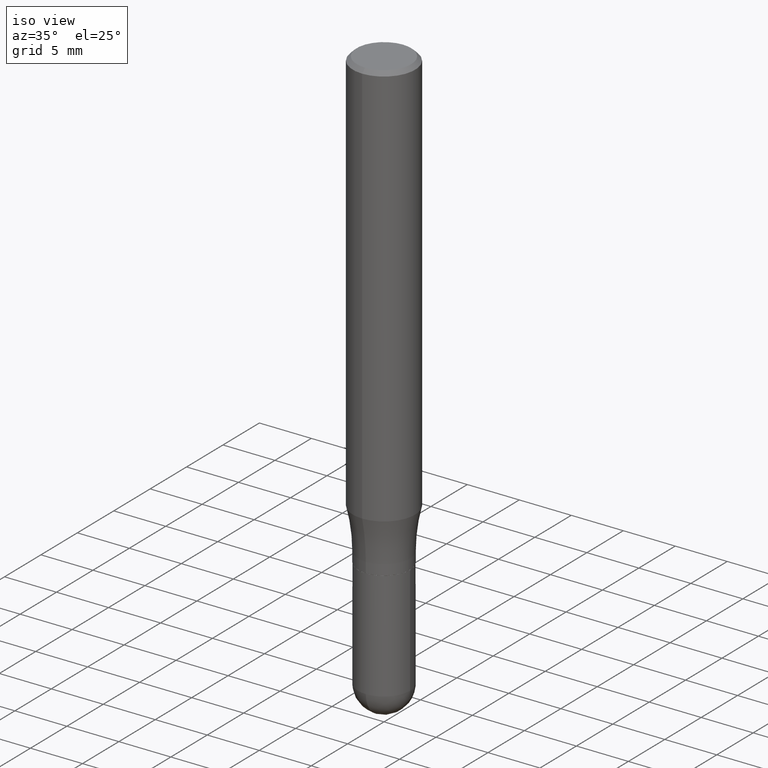
[diagram: clean part render]
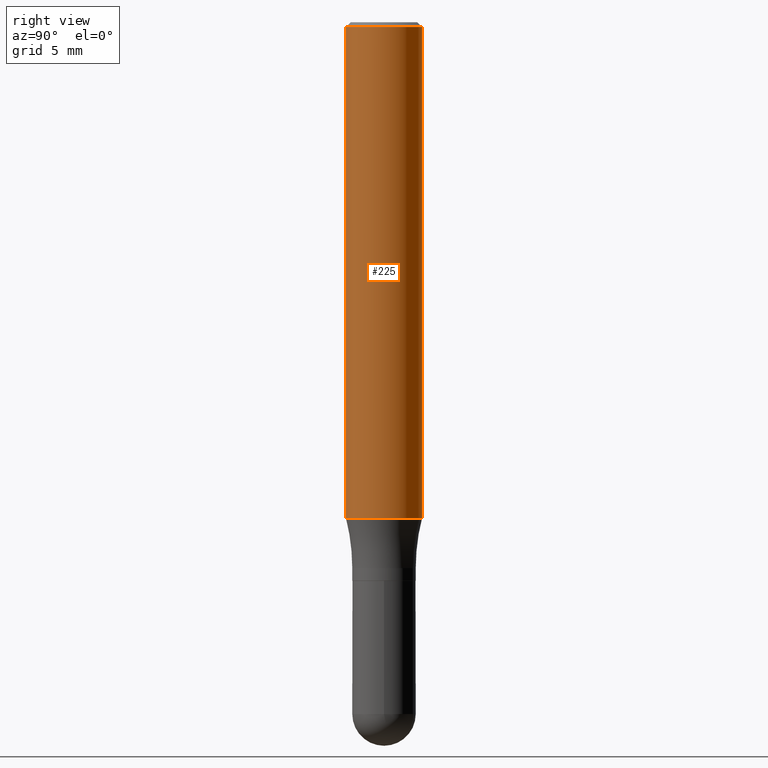
[diagram: tour spotlight — one face highlighted and labeled with its STEP entity id]
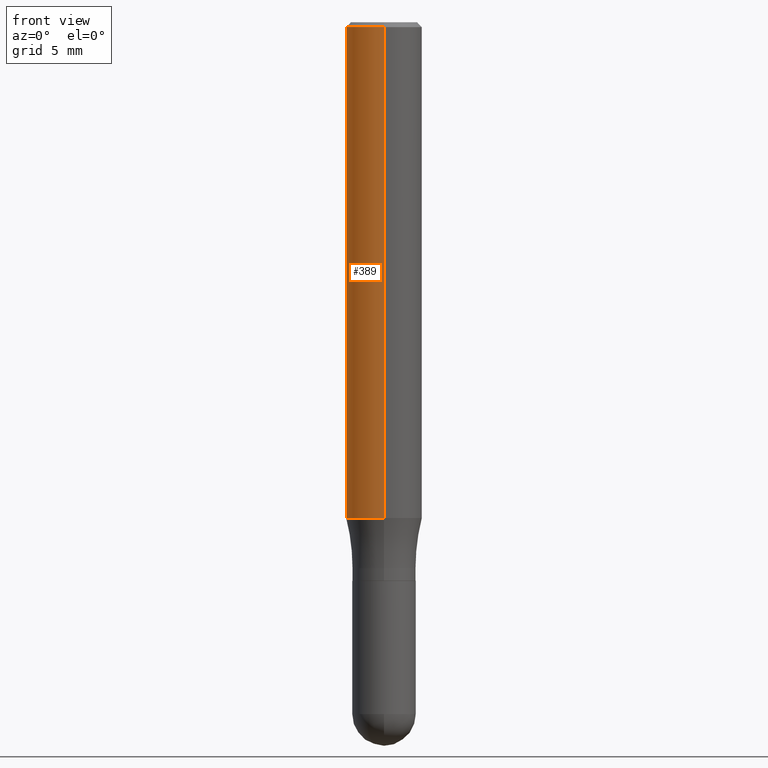
[diagram: tour spotlight — one face highlighted and labeled with its STEP entity id]
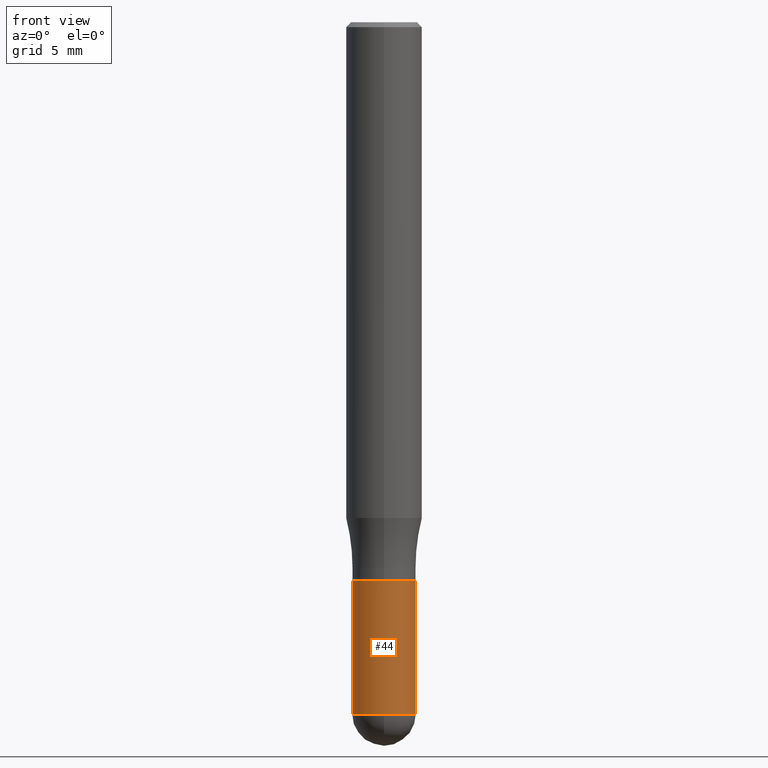
[diagram: tour spotlight — one face highlighted and labeled with its STEP entity id]
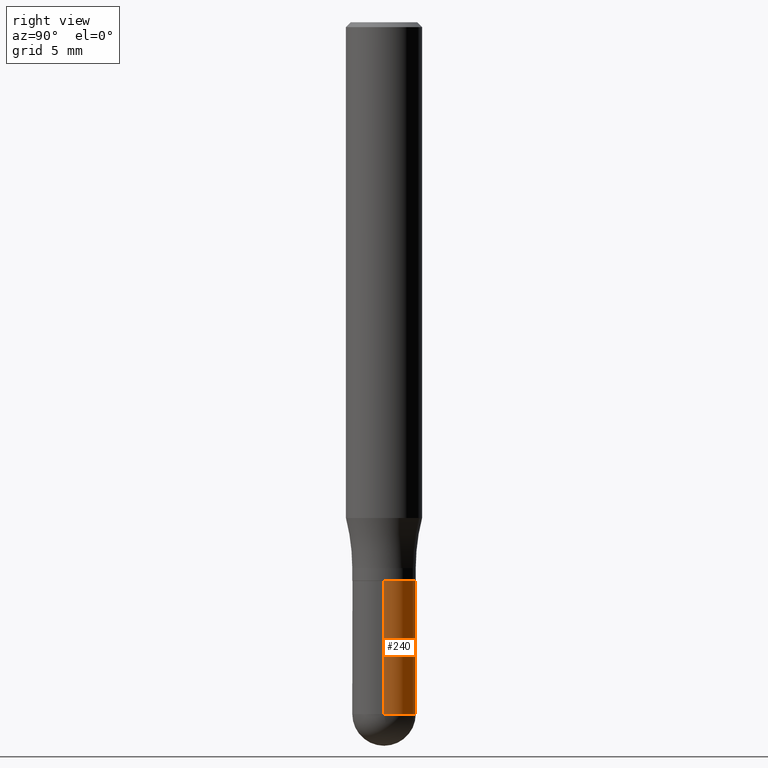
[diagram: tour spotlight — one face highlighted and labeled with its STEP entity id]
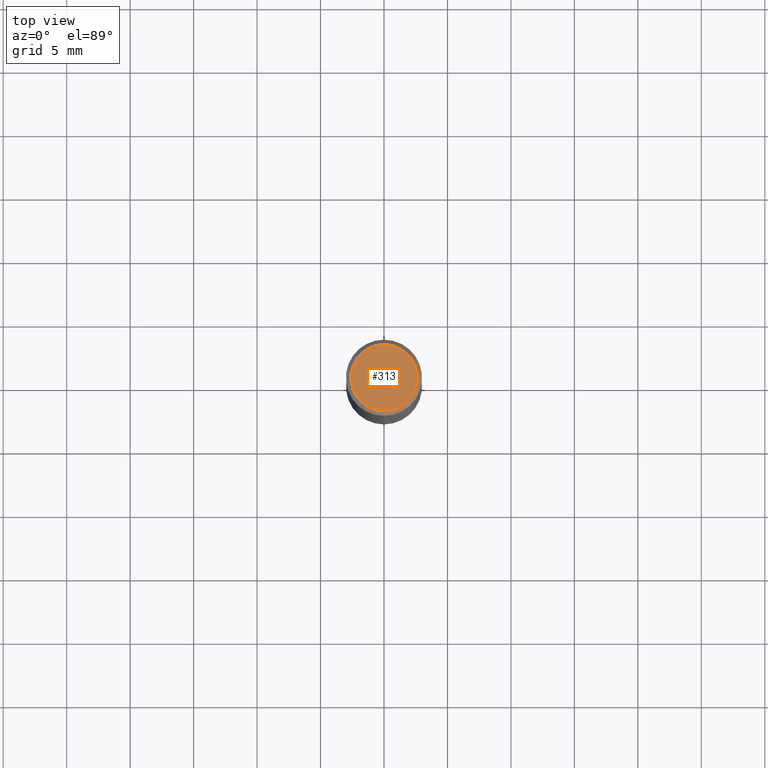
[diagram: tour spotlight — one face highlighted and labeled with its STEP entity id]
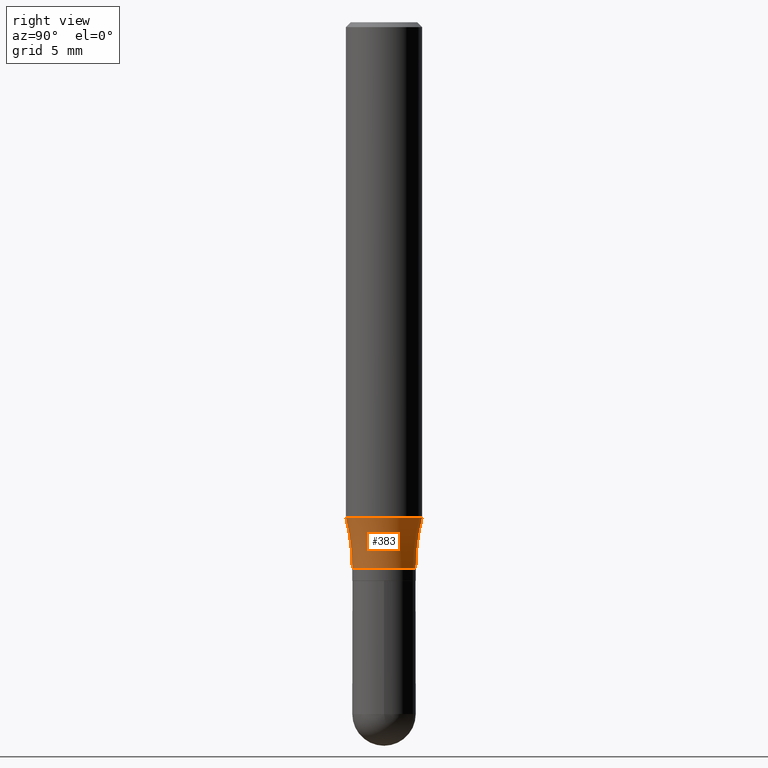
[diagram: tour spotlight — one face highlighted and labeled with its STEP entity id]
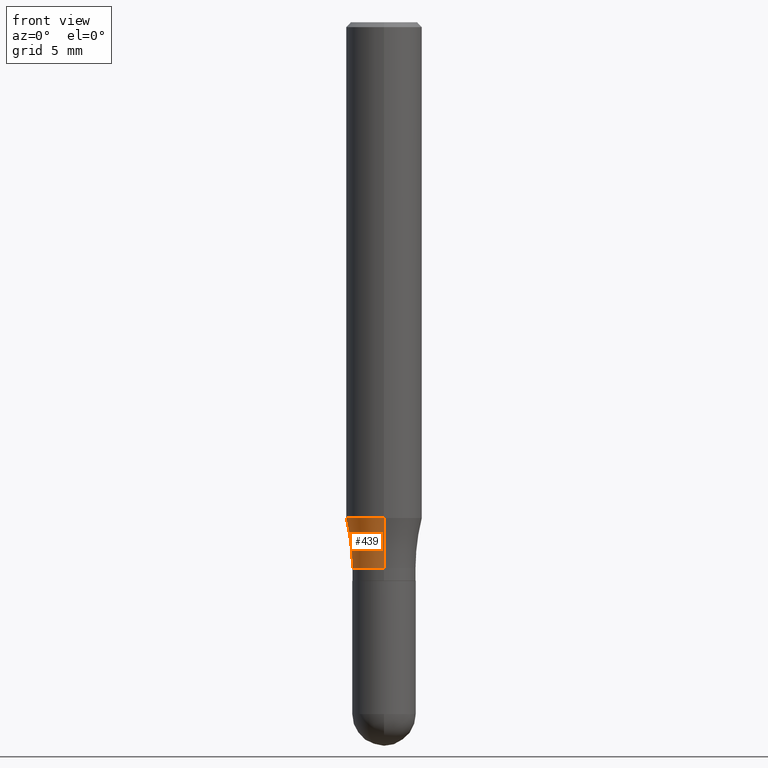
[diagram: tour spotlight — one face highlighted and labeled with its STEP entity id]
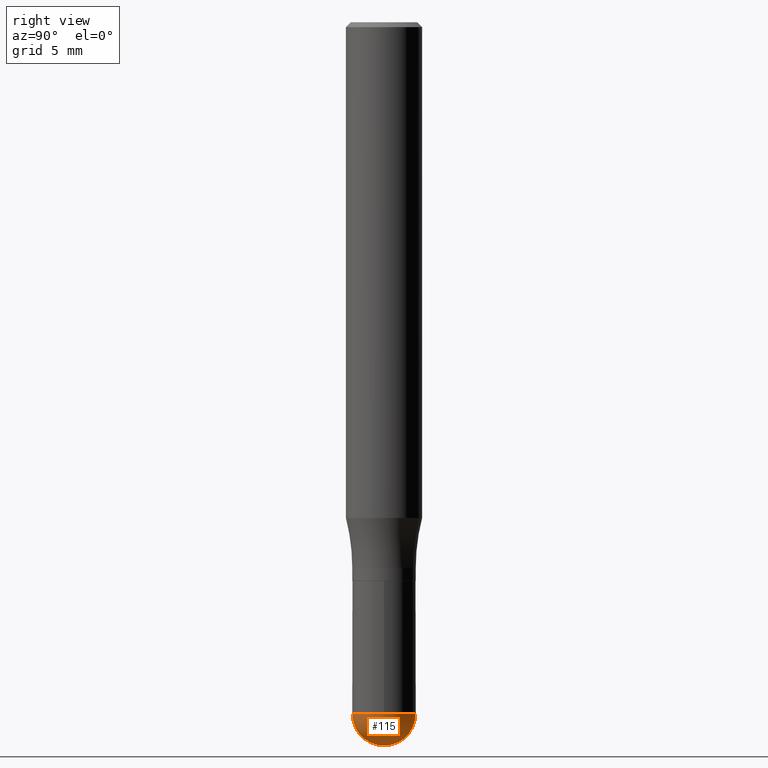
[diagram: tour spotlight — one face highlighted and labeled with its STEP entity id]
A machine part: a face-by-face anatomy tour. The part has 17 B-rep faces; the first image is the clean iso view, then the 8 largest visible faces are spotlighted one at a time (largest first), each with its STEP entity span.

Face 1 — right view, entity #225. In plain terms, the highlighted cylindrical surface (partial cylindrical patch) has radius 2.9997 mm, axis along (-0, 0, 1).
Definition (entity closure, byte-faithful):
#1 = DIRECTION ( 'NONE',  ( -2.443807302118375461E-29, 3.493860707233685893E-15, 1.000000000000000000 ) ) ;
#24 = VERTEX_POINT ( 'NONE', #470 ) ;
#25 = EDGE_LOOP ( 'NONE', ( #491, #377, #308, #436 ) ) ;
#30 = VERTEX_POINT ( 'NONE', #501 ) ;
#45 = CYLINDRICAL_SURFACE ( 'NONE', #103, 0.1181000000000000383 ) ;
#58 = EDGE_CURVE ( 'NONE', #24, #30, #259, .T. ) ;
#73 = DIRECTION ( 'NONE',  ( -2.443807302118375461E-29, 3.493860707233685893E-15, 1.000000000000000000 ) ) ;
#82 = CARTESIAN_POINT ( 'NONE',  ( 8.391509709327163582E-16, 0.1180999999999946815, -1.537612452267070218 ) ) ;
#103 = AXIS2_PLACEMENT_3D ( 'NONE', #434, #1, #236 ) ;
#116 = CARTESIAN_POINT ( 'NONE',  ( 8.391509709326783943E-16, 0.1181000000000000383, -4.126249495242984185E-16 ) ) ;
#118 = CARTESIAN_POINT ( 'NONE',  ( -8.246878922347482626E-16, -0.1181000000000000383, 4.126249495242984185E-16 ) ) ;
#119 = EDGE_CURVE ( 'NONE', #149, #24, #230, .T. ) ;
#122 = CARTESIAN_POINT ( 'NONE',  ( -8.246878922347102001E-16, -0.1181000000000054229, -1.537612452267069552 ) ) ;
#149 = VERTEX_POINT ( 'NONE', #122 ) ;
#161 = EDGE_CURVE ( 'NONE', #508, #30, #199, .T. ) ;
#181 = CIRCLE ( 'NONE', #319, 0.1181000000000000522 ) ;
#199 = LINE ( 'NONE', #116, #244 ) ;
#217 = EDGE_CURVE ( 'NONE', #149, #508, #181, .T. ) ;
#225 = ADVANCED_FACE ( 'NONE', ( #280 ), #45, .T. ) ;
#230 = LINE ( 'NONE', #118, #233 ) ;
#232 = DIRECTION ( 'NONE',  ( -6.982962677686265922E-15, -1.000000000000000000, 4.626330217890367758E-15 ) ) ;
#233 = VECTOR ( 'NONE', #322, 39.37007874015748143 ) ;
#236 = DIRECTION ( 'NONE',  ( -6.982962677686265922E-15, -1.000000000000000000, 3.493860707233685893E-15 ) ) ;
#242 = DIRECTION ( 'NONE',  ( -2.443807302118375461E-29, 3.493860707233685893E-15, 1.000000000000000000 ) ) ;
#244 = VECTOR ( 'NONE', #242, 39.37007874015748143 ) ;
#259 = CIRCLE ( 'NONE', #277, 0.1180999999999999966 ) ;
#277 = AXIS2_PLACEMENT_3D ( 'NONE', #304, #497, #335 ) ;
#280 = FACE_OUTER_BOUND ( 'NONE', #25, .T. ) ;
#304 = CARTESIAN_POINT ( 'NONE',  ( 3.665710953177518438E-31, -5.240791060850465138E-17, -0.01499999999999981730 ) ) ;
#308 = ORIENTED_EDGE ( 'NONE', *, *, #58, .F. ) ;
#319 = AXIS2_PLACEMENT_3D ( 'NONE', #479, #73, #232 ) ;
#322 = DIRECTION ( 'NONE',  ( -2.443807302118375461E-29, 3.493860707233685893E-15, 1.000000000000000000 ) ) ;
#335 = DIRECTION ( 'NONE',  ( -6.982962677686265922E-15, -1.000000000000000000, 3.487819265831411744E-15 ) ) ;
#377 = ORIENTED_EDGE ( 'NONE', *, *, #161, .T. ) ;
#434 = CARTESIAN_POINT ( 'NONE',  ( 0.000000000000000000, 0.000000000000000000, 0.000000000000000000 ) ) ;
#436 = ORIENTED_EDGE ( 'NONE', *, *, #119, .F. ) ;
#470 = CARTESIAN_POINT ( 'NONE',  ( -8.102248135368174406E-16, -0.1181000000000000522, -0.01499999999999940443 ) ) ;
#479 = CARTESIAN_POINT ( 'NONE',  ( 3.757628538678407478E-29, -5.372203729929147794E-15, -1.537612452267069996 ) ) ;
#491 = ORIENTED_EDGE ( 'NONE', *, *, #217, .T. ) ;
#497 = DIRECTION ( 'NONE',  ( -2.443807302118375461E-29, 3.493860707233685893E-15, 1.000000000000000000 ) ) ;
#501 = CARTESIAN_POINT ( 'NONE',  ( 8.246878922347483612E-16, 0.1180999999999999411, -0.01500000000000022843 ) ) ;
#508 = VERTEX_POINT ( 'NONE', #82 ) ;

Face 2 — front view, entity #389. In plain terms, the highlighted cylindrical surface (partial cylindrical patch) has radius 2.9997 mm, axis along (-0, 0, 1).
Definition (entity closure, byte-faithful):
#24 = VERTEX_POINT ( 'NONE', #470 ) ;
#30 = VERTEX_POINT ( 'NONE', #501 ) ;
#82 = CARTESIAN_POINT ( 'NONE',  ( 8.391509709327163582E-16, 0.1180999999999946815, -1.537612452267070218 ) ) ;
#100 = DIRECTION ( 'NONE',  ( -2.443807302118375461E-29, 3.493860707233685893E-15, 1.000000000000000000 ) ) ;
#104 = ORIENTED_EDGE ( 'NONE', *, *, #119, .T. ) ;
#108 = CARTESIAN_POINT ( 'NONE',  ( 3.665710953177518438E-31, -5.240791060850465138E-17, -0.01499999999999981730 ) ) ;
#112 = AXIS2_PLACEMENT_3D ( 'NONE', #288, #490, #135 ) ;
#116 = CARTESIAN_POINT ( 'NONE',  ( 8.391509709326783943E-16, 0.1181000000000000383, -4.126249495242984185E-16 ) ) ;
#118 = CARTESIAN_POINT ( 'NONE',  ( -8.246878922347482626E-16, -0.1181000000000000383, 4.126249495242984185E-16 ) ) ;
#119 = EDGE_CURVE ( 'NONE', #149, #24, #230, .T. ) ;
#122 = CARTESIAN_POINT ( 'NONE',  ( -8.246878922347102001E-16, -0.1181000000000054229, -1.537612452267069552 ) ) ;
#127 = FACE_OUTER_BOUND ( 'NONE', #247, .T. ) ;
#135 = DIRECTION ( 'NONE',  ( -6.982962677686265922E-15, -1.000000000000000000, 4.626330217890367758E-15 ) ) ;
#136 = ORIENTED_EDGE ( 'NONE', *, *, #424, .F. ) ;
#149 = VERTEX_POINT ( 'NONE', #122 ) ;
#161 = EDGE_CURVE ( 'NONE', #508, #30, #199, .T. ) ;
#179 = ORIENTED_EDGE ( 'NONE', *, *, #161, .F. ) ;
#199 = LINE ( 'NONE', #116, #244 ) ;
#206 = CARTESIAN_POINT ( 'NONE',  ( 0.000000000000000000, 0.000000000000000000, 0.000000000000000000 ) ) ;
#230 = LINE ( 'NONE', #118, #233 ) ;
#233 = VECTOR ( 'NONE', #322, 39.37007874015748143 ) ;
#242 = DIRECTION ( 'NONE',  ( -2.443807302118375461E-29, 3.493860707233685893E-15, 1.000000000000000000 ) ) ;
#244 = VECTOR ( 'NONE', #242, 39.37007874015748143 ) ;
#247 = EDGE_LOOP ( 'NONE', ( #179, #401, #104, #136 ) ) ;
#288 = CARTESIAN_POINT ( 'NONE',  ( 3.757628538678407478E-29, -5.372203729929147794E-15, -1.537612452267069996 ) ) ;
#322 = DIRECTION ( 'NONE',  ( -2.443807302118375461E-29, 3.493860707233685893E-15, 1.000000000000000000 ) ) ;
#327 = DIRECTION ( 'NONE',  ( -6.982962677686265922E-15, -1.000000000000000000, 3.493860707233685893E-15 ) ) ;
#331 = EDGE_CURVE ( 'NONE', #508, #149, #332, .T. ) ;
#332 = CIRCLE ( 'NONE', #112, 0.1181000000000000522 ) ;
#334 = DIRECTION ( 'NONE',  ( -6.982962677686265922E-15, -1.000000000000000000, 3.487819265831411744E-15 ) ) ;
#389 = ADVANCED_FACE ( 'NONE', ( #127 ), #488, .T. ) ;
#401 = ORIENTED_EDGE ( 'NONE', *, *, #331, .T. ) ;
#407 = AXIS2_PLACEMENT_3D ( 'NONE', #108, #100, #334 ) ;
#424 = EDGE_CURVE ( 'NONE', #30, #24, #425, .T. ) ;
#425 = CIRCLE ( 'NONE', #407, 0.1180999999999999966 ) ;
#451 = AXIS2_PLACEMENT_3D ( 'NONE', #206, #483, #327 ) ;
#470 = CARTESIAN_POINT ( 'NONE',  ( -8.102248135368174406E-16, -0.1181000000000000522, -0.01499999999999940443 ) ) ;
#483 = DIRECTION ( 'NONE',  ( -2.443807302118375461E-29, 3.493860707233685893E-15, 1.000000000000000000 ) ) ;
#488 = CYLINDRICAL_SURFACE ( 'NONE', #451, 0.1181000000000000383 ) ;
#490 = DIRECTION ( 'NONE',  ( -2.443807302118375461E-29, 3.493860707233685893E-15, 1.000000000000000000 ) ) ;
#501 = CARTESIAN_POINT ( 'NONE',  ( 8.246878922347483612E-16, 0.1180999999999999411, -0.01500000000000022843 ) ) ;
#508 = VERTEX_POINT ( 'NONE', #82 ) ;

Face 3 — front view, entity #44. In plain terms, the highlighted cylindrical surface (edge-blend (fillet) strip) has radius 2.5006 mm, axis along (-0, 0, 1).
Definition (entity closure, byte-faithful):
#4 = CARTESIAN_POINT ( 'NONE',  ( 5.247120143991138777E-29, -7.491496934688795271E-15, -2.145650000000000279 ) ) ;
#23 = CYLINDRICAL_SURFACE ( 'NONE', #477, 0.09844999999999999585 ) ;
#33 = ORIENTED_EDGE ( 'NONE', *, *, #283, .F. ) ;
#44 = ADVANCED_FACE ( 'NONE', ( #345 ), #23, .T. ) ;
#61 = VERTEX_POINT ( 'NONE', #462 ) ;
#63 = EDGE_CURVE ( 'NONE', #185, #190, #340, .T. ) ;
#64 = DIRECTION ( 'NONE',  ( -2.445468806185136877E-29, 3.491481338843145188E-15, 1.000000000000000000 ) ) ;
#65 = DIRECTION ( 'NONE',  ( 1.000000000000000000, -6.982962677686265922E-15, 0.000000000000000000 ) ) ;
#80 = EDGE_CURVE ( 'NONE', #190, #144, #124, .T. ) ;
#84 = DIRECTION ( 'NONE',  ( -2.445468806185136597E-29, 3.491481338843145583E-15, 1.000000000000000000 ) ) ;
#109 = ORIENTED_EDGE ( 'NONE', *, *, #80, .T. ) ;
#121 = CIRCLE ( 'NONE', #405, 0.09844999999999999585 ) ;
#124 = LINE ( 'NONE', #386, #361 ) ;
#130 = CARTESIAN_POINT ( 'NONE',  ( 4.236285612954512392E-29, -6.048293123277981078E-15, -1.732299999999999951 ) ) ;
#132 = LINE ( 'NONE', #141, #252 ) ;
#137 = EDGE_CURVE ( 'NONE', #61, #185, #121, .T. ) ;
#141 = CARTESIAN_POINT ( 'NONE',  ( -0.09844999999999999585, 6.995293233558186035E-16, -4.842691596355954042E-30 ) ) ;
#143 = CARTESIAN_POINT ( 'NONE',  ( 0.000000000000000000, 0.000000000000000000, 0.000000000000000000 ) ) ;
#144 = VERTEX_POINT ( 'NONE', #359 ) ;
#148 = AXIS2_PLACEMENT_3D ( 'NONE', #130, #213, #253 ) ;
#156 = DIRECTION ( 'NONE',  ( 1.000000000000000000, -6.982962677686266711E-15, 4.876176775795936353E-29 ) ) ;
#184 = ORIENTED_EDGE ( 'NONE', *, *, #406, .F. ) ;
#185 = VERTEX_POINT ( 'NONE', #271 ) ;
#190 = VERTEX_POINT ( 'NONE', #351 ) ;
#213 = DIRECTION ( 'NONE',  ( -2.445468806185136597E-29, 3.491481338843145583E-15, 1.000000000000000000 ) ) ;
#214 = VERTEX_POINT ( 'NONE', #427 ) ;
#252 = VECTOR ( 'NONE', #64, 39.37007874015748143 ) ;
#253 = DIRECTION ( 'NONE',  ( 1.000000000000000000, -6.982962677686265922E-15, 0.000000000000000000 ) ) ;
#263 = CARTESIAN_POINT ( 'NONE',  ( 5.247120143991138777E-29, -7.491496934688795271E-15, -2.145650000000000279 ) ) ;
#271 = CARTESIAN_POINT ( 'NONE',  ( -6.874726756181597064E-16, -0.09845000000000739271, -2.145649999999999835 ) ) ;
#273 = ORIENTED_EDGE ( 'NONE', *, *, #137, .T. ) ;
#283 = EDGE_CURVE ( 'NONE', #214, #144, #309, .T. ) ;
#309 = CIRCLE ( 'NONE', #148, 0.09844999999999999585 ) ;
#340 = CIRCLE ( 'NONE', #459, 0.09844999999999999585 ) ;
#345 = FACE_OUTER_BOUND ( 'NONE', #489, .T. ) ;
#346 = ORIENTED_EDGE ( 'NONE', *, *, #63, .T. ) ;
#351 = CARTESIAN_POINT ( 'NONE',  ( 0.09844999999999999585, -7.457367704601601918E-15, -2.145650000000000279 ) ) ;
#359 = CARTESIAN_POINT ( 'NONE',  ( 0.09844999999999999585, -6.735765798896194427E-15, -1.732299999999999951 ) ) ;
#361 = VECTOR ( 'NONE', #478, 39.37007874015748143 ) ;
#386 = CARTESIAN_POINT ( 'NONE',  ( 0.09844999999999999585, -6.874726756182129545E-16, 4.800596035771099214E-30 ) ) ;
#390 = DIRECTION ( 'NONE',  ( 1.000000000000000000, -6.982962677686265922E-15, 0.000000000000000000 ) ) ;
#405 = AXIS2_PLACEMENT_3D ( 'NONE', #4, #84, #390 ) ;
#406 = EDGE_CURVE ( 'NONE', #61, #214, #132, .T. ) ;
#419 = DIRECTION ( 'NONE',  ( -2.445468806185136597E-29, 3.491481338843145583E-15, 1.000000000000000000 ) ) ;
#427 = CARTESIAN_POINT ( 'NONE',  ( -0.09844999999999999585, -6.070365705627569670E-15, -1.732299999999999951 ) ) ;
#459 = AXIS2_PLACEMENT_3D ( 'NONE', #263, #419, #65 ) ;
#462 = CARTESIAN_POINT ( 'NONE',  ( -0.09844999999999999585, -6.070365705627569670E-15, -2.145650000000000279 ) ) ;
#477 = AXIS2_PLACEMENT_3D ( 'NONE', #143, #512, #156 ) ;
#478 = DIRECTION ( 'NONE',  ( -2.445468806185136877E-29, 3.491481338843145188E-15, 1.000000000000000000 ) ) ;
#489 = EDGE_LOOP ( 'NONE', ( #184, #273, #346, #109, #33 ) ) ;
#512 = DIRECTION ( 'NONE',  ( -2.445468806185136597E-29, 3.491481338843145583E-15, 1.000000000000000000 ) ) ;

Face 4 — right view, entity #240. In plain terms, the highlighted cylindrical surface (edge-blend (fillet) strip) has radius 2.5006 mm, axis along (-0, 0, 1).
Definition (entity closure, byte-faithful):
#37 = AXIS2_PLACEMENT_3D ( 'NONE', #318, #42, #429 ) ;
#39 = DIRECTION ( 'NONE',  ( -2.445468806185136597E-29, 3.491481338843145583E-15, 1.000000000000000000 ) ) ;
#42 = DIRECTION ( 'NONE',  ( -2.445468806185136597E-29, 3.491481338843145583E-15, 1.000000000000000000 ) ) ;
#59 = ORIENTED_EDGE ( 'NONE', *, *, #187, .F. ) ;
#61 = VERTEX_POINT ( 'NONE', #462 ) ;
#64 = DIRECTION ( 'NONE',  ( -2.445468806185136877E-29, 3.491481338843145188E-15, 1.000000000000000000 ) ) ;
#75 = DIRECTION ( 'NONE',  ( 1.000000000000000000, -6.982962677686265922E-15, 0.000000000000000000 ) ) ;
#80 = EDGE_CURVE ( 'NONE', #190, #144, #124, .T. ) ;
#91 = EDGE_LOOP ( 'NONE', ( #507, #403, #59, #212, #177 ) ) ;
#124 = LINE ( 'NONE', #386, #361 ) ;
#132 = LINE ( 'NONE', #141, #252 ) ;
#141 = CARTESIAN_POINT ( 'NONE',  ( -0.09844999999999999585, 6.995293233558186035E-16, -4.842691596355954042E-30 ) ) ;
#144 = VERTEX_POINT ( 'NONE', #359 ) ;
#157 = CIRCLE ( 'NONE', #37, 0.09844999999999999585 ) ;
#159 = DIRECTION ( 'NONE',  ( -2.445468806185136597E-29, 3.491481338843145583E-15, 1.000000000000000000 ) ) ;
#168 = EDGE_CURVE ( 'NONE', #190, #511, #157, .T. ) ;
#177 = ORIENTED_EDGE ( 'NONE', *, *, #168, .T. ) ;
#186 = CIRCLE ( 'NONE', #293, 0.09844999999999999585 ) ;
#187 = EDGE_CURVE ( 'NONE', #144, #214, #186, .T. ) ;
#190 = VERTEX_POINT ( 'NONE', #351 ) ;
#195 = CARTESIAN_POINT ( 'NONE',  ( 0.000000000000000000, 0.000000000000000000, 0.000000000000000000 ) ) ;
#211 = DIRECTION ( 'NONE',  ( -2.445468806185136597E-29, 3.491481338843145583E-15, 1.000000000000000000 ) ) ;
#212 = ORIENTED_EDGE ( 'NONE', *, *, #80, .F. ) ;
#214 = VERTEX_POINT ( 'NONE', #427 ) ;
#240 = ADVANCED_FACE ( 'NONE', ( #393 ), #321, .T. ) ;
#252 = VECTOR ( 'NONE', #64, 39.37007874015748143 ) ;
#291 = CARTESIAN_POINT ( 'NONE',  ( 5.247120143991138777E-29, -7.491496934688795271E-15, -2.145650000000000279 ) ) ;
#293 = AXIS2_PLACEMENT_3D ( 'NONE', #384, #39, #75 ) ;
#294 = DIRECTION ( 'NONE',  ( 1.000000000000000000, -6.982962677686265922E-15, 0.000000000000000000 ) ) ;
#318 = CARTESIAN_POINT ( 'NONE',  ( 5.247120143991138777E-29, -7.491496934688795271E-15, -2.145650000000000279 ) ) ;
#321 = CYLINDRICAL_SURFACE ( 'NONE', #431, 0.09844999999999999585 ) ;
#348 = EDGE_CURVE ( 'NONE', #511, #61, #514, .T. ) ;
#351 = CARTESIAN_POINT ( 'NONE',  ( 0.09844999999999999585, -7.457367704601601918E-15, -2.145650000000000279 ) ) ;
#359 = CARTESIAN_POINT ( 'NONE',  ( 0.09844999999999999585, -6.735765798896194427E-15, -1.732299999999999951 ) ) ;
#361 = VECTOR ( 'NONE', #478, 39.37007874015748143 ) ;
#362 = DIRECTION ( 'NONE',  ( 1.000000000000000000, -6.982962677686266711E-15, 4.876176775795936353E-29 ) ) ;
#384 = CARTESIAN_POINT ( 'NONE',  ( 4.236285612954512392E-29, -6.048293123277981078E-15, -1.732299999999999951 ) ) ;
#386 = CARTESIAN_POINT ( 'NONE',  ( 0.09844999999999999585, -6.874726756182129545E-16, 4.800596035771099214E-30 ) ) ;
#393 = FACE_OUTER_BOUND ( 'NONE', #91, .T. ) ;
#396 = AXIS2_PLACEMENT_3D ( 'NONE', #291, #211, #294 ) ;
#403 = ORIENTED_EDGE ( 'NONE', *, *, #406, .T. ) ;
#406 = EDGE_CURVE ( 'NONE', #61, #214, #132, .T. ) ;
#427 = CARTESIAN_POINT ( 'NONE',  ( -0.09844999999999999585, -6.070365705627569670E-15, -1.732299999999999951 ) ) ;
#429 = DIRECTION ( 'NONE',  ( 1.000000000000000000, -6.982962677686265922E-15, 0.000000000000000000 ) ) ;
#430 = CARTESIAN_POINT ( 'NONE',  ( 6.995293233558702739E-16, 0.09844999999999239082, -2.145650000000000279 ) ) ;
#431 = AXIS2_PLACEMENT_3D ( 'NONE', #195, #159, #362 ) ;
#462 = CARTESIAN_POINT ( 'NONE',  ( -0.09844999999999999585, -6.070365705627569670E-15, -2.145650000000000279 ) ) ;
#478 = DIRECTION ( 'NONE',  ( -2.445468806185136877E-29, 3.491481338843145188E-15, 1.000000000000000000 ) ) ;
#507 = ORIENTED_EDGE ( 'NONE', *, *, #348, .T. ) ;
#511 = VERTEX_POINT ( 'NONE', #430 ) ;
#514 = CIRCLE ( 'NONE', #396, 0.09844999999999999585 ) ;

Face 5 — top view, entity #313. In plain terms, the highlighted planar face has unit normal (0, -0, -1).
Definition (entity closure, byte-faithful):
#10 = CARTESIAN_POINT ( 'NONE',  ( -7.587710785535310407E-16, -0.1031000000000000111, 5.434731219886950352E-16 ) ) ;
#16 = CARTESIAN_POINT ( 'NONE',  ( 7.199434520694541042E-16, 0.1031000000000000111, -2.685889973793420729E-16 ) ) ;
#31 = ORIENTED_EDGE ( 'NONE', *, *, #487, .T. ) ;
#53 = DIRECTION ( 'NONE',  ( 6.982962677686265922E-15, 1.000000000000000000, -3.493860707233685893E-15 ) ) ;
#60 = AXIS2_PLACEMENT_3D ( 'NONE', #176, #98, #286 ) ;
#70 = EDGE_LOOP ( 'NONE', ( #31, #502 ) ) ;
#90 = PLANE ( 'NONE',  #200 ) ;
#95 = VERTEX_POINT ( 'NONE', #10 ) ;
#98 = DIRECTION ( 'NONE',  ( -2.443807302118375461E-29, 3.493860707233685893E-15, 1.000000000000000000 ) ) ;
#105 = CIRCLE ( 'NONE', #201, 0.1031000000000000111 ) ;
#138 = FACE_OUTER_BOUND ( 'NONE', #70, .T. ) ;
#145 = CARTESIAN_POINT ( 'NONE',  ( 7.723156721521011834E-16, 0.1031000000000000111, -1.769609558428910937E-16 ) ) ;
#176 = CARTESIAN_POINT ( 'NONE',  ( -4.478425539711694283E-45, 6.402712280099643174E-31, 1.832560830729019338E-16 ) ) ;
#200 = AXIS2_PLACEMENT_3D ( 'NONE', #16, #329, #53 ) ;
#201 = AXIS2_PLACEMENT_3D ( 'NONE', #412, #262, #418 ) ;
#262 = DIRECTION ( 'NONE',  ( -2.443807302118375461E-29, 3.493860707233685893E-15, 1.000000000000000000 ) ) ;
#286 = DIRECTION ( 'NONE',  ( -6.982962677686265922E-15, -1.000000000000000000, 3.493860707233685498E-15 ) ) ;
#313 = ADVANCED_FACE ( 'NONE', ( #138 ), #90, .F. ) ;
#329 = DIRECTION ( 'NONE',  ( 2.443807302118375461E-29, -3.493860707233685893E-15, -1.000000000000000000 ) ) ;
#364 = EDGE_CURVE ( 'NONE', #95, #455, #374, .T. ) ;
#374 = CIRCLE ( 'NONE', #60, 0.1031000000000000111 ) ;
#412 = CARTESIAN_POINT ( 'NONE',  ( -4.478425539711694283E-45, 6.402712280099643174E-31, 1.832560830729019338E-16 ) ) ;
#418 = DIRECTION ( 'NONE',  ( -6.982962677686265922E-15, -1.000000000000000000, 3.493860707233685498E-15 ) ) ;
#455 = VERTEX_POINT ( 'NONE', #145 ) ;
#487 = EDGE_CURVE ( 'NONE', #455, #95, #105, .T. ) ;
#502 = ORIENTED_EDGE ( 'NONE', *, *, #364, .T. ) ;

Face 6 — right view, entity #383. In plain terms, the highlighted toroidal blend (fillet) surface has major radius 18.3756 mm and minor (blend) radius 15.875 mm.
Definition (entity closure, byte-faithful):
#13 = CIRCLE ( 'NONE', #423, 0.6250000000000001110 ) ;
#29 = AXIS2_PLACEMENT_3D ( 'NONE', #301, #265, #221 ) ;
#32 = VERTEX_POINT ( 'NONE', #426 ) ;
#43 = CARTESIAN_POINT ( 'NONE',  ( -5.051824349172086656E-15, -0.7234500000000058106, -1.693099999999997607 ) ) ;
#73 = DIRECTION ( 'NONE',  ( -2.443807302118375461E-29, 3.493860707233685893E-15, 1.000000000000000000 ) ) ;
#82 = CARTESIAN_POINT ( 'NONE',  ( 8.391509709327163582E-16, 0.1180999999999946815, -1.537612452267070218 ) ) ;
#122 = CARTESIAN_POINT ( 'NONE',  ( -8.246878922347102001E-16, -0.1181000000000054229, -1.537612452267069552 ) ) ;
#149 = VERTEX_POINT ( 'NONE', #122 ) ;
#173 = AXIS2_PLACEMENT_3D ( 'NONE', #43, #229, #270 ) ;
#174 = DIRECTION ( 'NONE',  ( -6.982962677686265922E-15, -1.000000000000000000, 3.493860707233685498E-15 ) ) ;
#180 = DIRECTION ( 'NONE',  ( -2.443807302118375461E-29, 3.493860707233685893E-15, 1.000000000000000000 ) ) ;
#181 = CIRCLE ( 'NONE', #319, 0.1181000000000000522 ) ;
#208 = ORIENTED_EDGE ( 'NONE', *, *, #297, .F. ) ;
#217 = EDGE_CURVE ( 'NONE', #149, #508, #181, .T. ) ;
#221 = DIRECTION ( 'NONE',  ( -6.982962677686265922E-15, -1.000000000000000000, 2.774858297271982715E-15 ) ) ;
#229 = DIRECTION ( 'NONE',  ( -1.000000000000000000, 6.982962677686265922E-15, -4.883557194083112340E-29 ) ) ;
#232 = DIRECTION ( 'NONE',  ( -6.982962677686265922E-15, -1.000000000000000000, 4.626330217890367758E-15 ) ) ;
#246 = DIRECTION ( 'NONE',  ( 1.000000000000000000, -7.105427357601001070E-15, 4.926344647400916532E-29 ) ) ;
#254 = FACE_OUTER_BOUND ( 'NONE', #411, .T. ) ;
#265 = DIRECTION ( 'NONE',  ( -2.443807302118375461E-29, 3.493860707233685893E-15, 1.000000000000000000 ) ) ;
#268 = VERTEX_POINT ( 'NONE', #404 ) ;
#270 = DIRECTION ( 'NONE',  ( -6.982962677686265133E-15, -1.000000000000000000, 0.000000000000000000 ) ) ;
#279 = CIRCLE ( 'NONE', #29, 0.09844999999999987095 ) ;
#289 = DIRECTION ( 'NONE',  ( 7.105427357601000281E-15, 1.000000000000000000, 0.000000000000000000 ) ) ;
#297 = EDGE_CURVE ( 'NONE', #508, #32, #13, .T. ) ;
#301 = CARTESIAN_POINT ( 'NONE',  ( 4.137610143216622021E-29, -5.915455563417354212E-15, -1.693100000000000049 ) ) ;
#319 = AXIS2_PLACEMENT_3D ( 'NONE', #479, #73, #232 ) ;
#323 = CARTESIAN_POINT ( 'NONE',  ( 4.140423235752054805E-29, -5.911427054795329676E-15, -1.693100000000000049 ) ) ;
#333 = ORIENTED_EDGE ( 'NONE', *, *, #217, .F. ) ;
#352 = AXIS2_PLACEMENT_3D ( 'NONE', #323, #180, #174 ) ;
#368 = TOROIDAL_SURFACE ( 'NONE', #352, 0.7234499999999999265, 0.6250000000000000000 ) ;
#369 = CARTESIAN_POINT ( 'NONE',  ( 5.140421421856484504E-15, 0.7234499999999940423, -1.693100000000002492 ) ) ;
#372 = ORIENTED_EDGE ( 'NONE', *, *, #456, .T. ) ;
#383 = ADVANCED_FACE ( 'NONE', ( #254 ), #368, .F. ) ;
#404 = CARTESIAN_POINT ( 'NONE',  ( -6.874726756181705532E-16, -0.09845000000000578289, -1.693099999999999827 ) ) ;
#411 = EDGE_LOOP ( 'NONE', ( #208, #333, #463, #372 ) ) ;
#423 = AXIS2_PLACEMENT_3D ( 'NONE', #369, #246, #289 ) ;
#426 = CARTESIAN_POINT ( 'NONE',  ( 7.693401471442876954E-16, 0.09844999999999397289, -1.693100000000000271 ) ) ;
#456 = EDGE_CURVE ( 'NONE', #268, #32, #279, .T. ) ;
#463 = ORIENTED_EDGE ( 'NONE', *, *, #506, .T. ) ;
#479 = CARTESIAN_POINT ( 'NONE',  ( 3.757628538678407478E-29, -5.372203729929147794E-15, -1.537612452267069996 ) ) ;
#504 = CIRCLE ( 'NONE', #173, 0.6249999999999998890 ) ;
#506 = EDGE_CURVE ( 'NONE', #149, #268, #504, .T. ) ;
#508 = VERTEX_POINT ( 'NONE', #82 ) ;

Face 7 — front view, entity #439. In plain terms, the highlighted toroidal blend (fillet) surface has major radius 18.3756 mm and minor (blend) radius 15.875 mm.
Definition (entity closure, byte-faithful):
#13 = CIRCLE ( 'NONE', #423, 0.6250000000000001110 ) ;
#32 = VERTEX_POINT ( 'NONE', #426 ) ;
#43 = CARTESIAN_POINT ( 'NONE',  ( -5.051824349172086656E-15, -0.7234500000000058106, -1.693099999999997607 ) ) ;
#82 = CARTESIAN_POINT ( 'NONE',  ( 8.391509709327163582E-16, 0.1180999999999946815, -1.537612452267070218 ) ) ;
#83 = ORIENTED_EDGE ( 'NONE', *, *, #331, .F. ) ;
#92 = CARTESIAN_POINT ( 'NONE',  ( 4.137610143216622021E-29, -5.915455563417354212E-15, -1.693100000000000049 ) ) ;
#102 = ORIENTED_EDGE ( 'NONE', *, *, #506, .F. ) ;
#112 = AXIS2_PLACEMENT_3D ( 'NONE', #288, #490, #135 ) ;
#122 = CARTESIAN_POINT ( 'NONE',  ( -8.246878922347102001E-16, -0.1181000000000054229, -1.537612452267069552 ) ) ;
#135 = DIRECTION ( 'NONE',  ( -6.982962677686265922E-15, -1.000000000000000000, 4.626330217890367758E-15 ) ) ;
#149 = VERTEX_POINT ( 'NONE', #122 ) ;
#171 = ORIENTED_EDGE ( 'NONE', *, *, #370, .T. ) ;
#173 = AXIS2_PLACEMENT_3D ( 'NONE', #43, #229, #270 ) ;
#194 = TOROIDAL_SURFACE ( 'NONE', #460, 0.7234499999999999265, 0.6250000000000000000 ) ;
#229 = DIRECTION ( 'NONE',  ( -1.000000000000000000, 6.982962677686265922E-15, -4.883557194083112340E-29 ) ) ;
#246 = DIRECTION ( 'NONE',  ( 1.000000000000000000, -7.105427357601001070E-15, 4.926344647400916532E-29 ) ) ;
#258 = DIRECTION ( 'NONE',  ( -6.982962677686265922E-15, -1.000000000000000000, 3.493860707233685498E-15 ) ) ;
#268 = VERTEX_POINT ( 'NONE', #404 ) ;
#270 = DIRECTION ( 'NONE',  ( -6.982962677686265133E-15, -1.000000000000000000, 0.000000000000000000 ) ) ;
#288 = CARTESIAN_POINT ( 'NONE',  ( 3.757628538678407478E-29, -5.372203729929147794E-15, -1.537612452267069996 ) ) ;
#289 = DIRECTION ( 'NONE',  ( 7.105427357601000281E-15, 1.000000000000000000, 0.000000000000000000 ) ) ;
#297 = EDGE_CURVE ( 'NONE', #508, #32, #13, .T. ) ;
#331 = EDGE_CURVE ( 'NONE', #508, #149, #332, .T. ) ;
#332 = CIRCLE ( 'NONE', #112, 0.1181000000000000522 ) ;
#336 = DIRECTION ( 'NONE',  ( -2.443807302118375461E-29, 3.493860707233685893E-15, 1.000000000000000000 ) ) ;
#339 = FACE_OUTER_BOUND ( 'NONE', #413, .T. ) ;
#344 = CARTESIAN_POINT ( 'NONE',  ( 4.140423235752054805E-29, -5.911427054795329676E-15, -1.693100000000000049 ) ) ;
#369 = CARTESIAN_POINT ( 'NONE',  ( 5.140421421856484504E-15, 0.7234499999999940423, -1.693100000000002492 ) ) ;
#370 = EDGE_CURVE ( 'NONE', #32, #268, #387, .T. ) ;
#387 = CIRCLE ( 'NONE', #469, 0.09844999999999987095 ) ;
#399 = DIRECTION ( 'NONE',  ( -6.982962677686265922E-15, -1.000000000000000000, 2.774858297271982715E-15 ) ) ;
#404 = CARTESIAN_POINT ( 'NONE',  ( -6.874726756181705532E-16, -0.09845000000000578289, -1.693099999999999827 ) ) ;
#408 = DIRECTION ( 'NONE',  ( -2.443807302118375461E-29, 3.493860707233685893E-15, 1.000000000000000000 ) ) ;
#413 = EDGE_LOOP ( 'NONE', ( #83, #467, #171, #102 ) ) ;
#423 = AXIS2_PLACEMENT_3D ( 'NONE', #369, #246, #289 ) ;
#426 = CARTESIAN_POINT ( 'NONE',  ( 7.693401471442876954E-16, 0.09844999999999397289, -1.693100000000000271 ) ) ;
#439 = ADVANCED_FACE ( 'NONE', ( #339 ), #194, .F. ) ;
#460 = AXIS2_PLACEMENT_3D ( 'NONE', #344, #336, #258 ) ;
#467 = ORIENTED_EDGE ( 'NONE', *, *, #297, .T. ) ;
#469 = AXIS2_PLACEMENT_3D ( 'NONE', #92, #408, #399 ) ;
#490 = DIRECTION ( 'NONE',  ( -2.443807302118375461E-29, 3.493860707233685893E-15, 1.000000000000000000 ) ) ;
#504 = CIRCLE ( 'NONE', #173, 0.6249999999999998890 ) ;
#506 = EDGE_CURVE ( 'NONE', #149, #268, #504, .T. ) ;
#508 = VERTEX_POINT ( 'NONE', #82 ) ;

Face 8 — right view, entity #115. In plain terms, the highlighted spherical surface has radius 2.5006 mm.
Definition (entity closure, byte-faithful):
#7 = FACE_OUTER_BOUND ( 'NONE', #89, .T. ) ;
#37 = AXIS2_PLACEMENT_3D ( 'NONE', #318, #42, #429 ) ;
#42 = DIRECTION ( 'NONE',  ( -2.445468806185136597E-29, 3.491481338843145583E-15, 1.000000000000000000 ) ) ;
#48 = AXIS2_PLACEMENT_3D ( 'NONE', #440, #481, #55 ) ;
#49 = CARTESIAN_POINT ( 'NONE',  ( 5.238701031874166970E-29, -7.503553582426400821E-15, -2.145650000000000279 ) ) ;
#55 = DIRECTION ( 'NONE',  ( -6.982962677686265922E-15, -1.000000000000000000, 0.000000000000000000 ) ) ;
#63 = EDGE_CURVE ( 'NONE', #185, #190, #340, .T. ) ;
#65 = DIRECTION ( 'NONE',  ( 1.000000000000000000, -6.982962677686265922E-15, 0.000000000000000000 ) ) ;
#67 = CIRCLE ( 'NONE', #385, 0.09844999999999980156 ) ;
#77 = CIRCLE ( 'NONE', #48, 0.09844999999999980156 ) ;
#79 = DIRECTION ( 'NONE',  ( 1.000000000000000000, -6.982962677686265133E-15, 4.883557194083112340E-29 ) ) ;
#88 = DIRECTION ( 'NONE',  ( 7.105427357601001070E-15, 1.000000000000000000, 0.000000000000000000 ) ) ;
#89 = EDGE_LOOP ( 'NONE', ( #510, #219, #223, #324 ) ) ;
#94 = AXIS2_PLACEMENT_3D ( 'NONE', #49, #79, #355 ) ;
#115 = ADVANCED_FACE ( 'NONE', ( #7 ), #314, .T. ) ;
#157 = CIRCLE ( 'NONE', #37, 0.09844999999999999585 ) ;
#168 = EDGE_CURVE ( 'NONE', #190, #511, #157, .T. ) ;
#185 = VERTEX_POINT ( 'NONE', #271 ) ;
#190 = VERTEX_POINT ( 'NONE', #351 ) ;
#207 = DIRECTION ( 'NONE',  ( 1.000000000000000000, -7.105427357601001070E-15, 4.926315508542082329E-29 ) ) ;
#219 = ORIENTED_EDGE ( 'NONE', *, *, #282, .T. ) ;
#223 = ORIENTED_EDGE ( 'NONE', *, *, #168, .F. ) ;
#249 = CARTESIAN_POINT ( 'NONE',  ( 5.238701031874166970E-29, -7.503553582426400821E-15, -2.145650000000000279 ) ) ;
#263 = CARTESIAN_POINT ( 'NONE',  ( 5.247120143991138777E-29, -7.491496934688795271E-15, -2.145650000000000279 ) ) ;
#271 = CARTESIAN_POINT ( 'NONE',  ( -6.874726756181597064E-16, -0.09845000000000739271, -2.145649999999999835 ) ) ;
#282 = EDGE_CURVE ( 'NONE', #295, #511, #67, .T. ) ;
#295 = VERTEX_POINT ( 'NONE', #363 ) ;
#314 = SPHERICAL_SURFACE ( 'NONE', #94, 0.09844999999999980156 ) ;
#318 = CARTESIAN_POINT ( 'NONE',  ( 5.247120143991138777E-29, -7.491496934688795271E-15, -2.145650000000000279 ) ) ;
#324 = ORIENTED_EDGE ( 'NONE', *, *, #63, .F. ) ;
#340 = CIRCLE ( 'NONE', #459, 0.09844999999999999585 ) ;
#351 = CARTESIAN_POINT ( 'NONE',  ( 0.09844999999999999585, -7.457367704601601918E-15, -2.145650000000000279 ) ) ;
#355 = DIRECTION ( 'NONE',  ( -6.982962677686265133E-15, -1.000000000000000000, 2.774858297271984292E-15 ) ) ;
#363 = CARTESIAN_POINT ( 'NONE',  ( 5.475247879784608163E-29, -7.853318244104310665E-15, -2.244099999999999984 ) ) ;
#381 = EDGE_CURVE ( 'NONE', #295, #185, #77, .T. ) ;
#385 = AXIS2_PLACEMENT_3D ( 'NONE', #249, #207, #88 ) ;
#419 = DIRECTION ( 'NONE',  ( -2.445468806185136597E-29, 3.491481338843145583E-15, 1.000000000000000000 ) ) ;
#429 = DIRECTION ( 'NONE',  ( 1.000000000000000000, -6.982962677686265922E-15, 0.000000000000000000 ) ) ;
#430 = CARTESIAN_POINT ( 'NONE',  ( 6.995293233558702739E-16, 0.09844999999999239082, -2.145650000000000279 ) ) ;
#440 = CARTESIAN_POINT ( 'NONE',  ( 5.238701031874166970E-29, -7.503553582426400821E-15, -2.145650000000000279 ) ) ;
#459 = AXIS2_PLACEMENT_3D ( 'NONE', #263, #419, #65 ) ;
#481 = DIRECTION ( 'NONE',  ( -1.000000000000000000, 6.982962677686265922E-15, -4.883557194083112340E-29 ) ) ;
#510 = ORIENTED_EDGE ( 'NONE', *, *, #381, .F. ) ;
#511 = VERTEX_POINT ( 'NONE', #430 ) ;